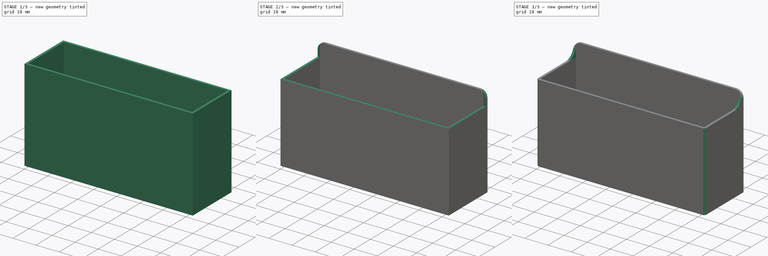
[diagram: build sequence overview — one tinted view per stage of 3, left to right]
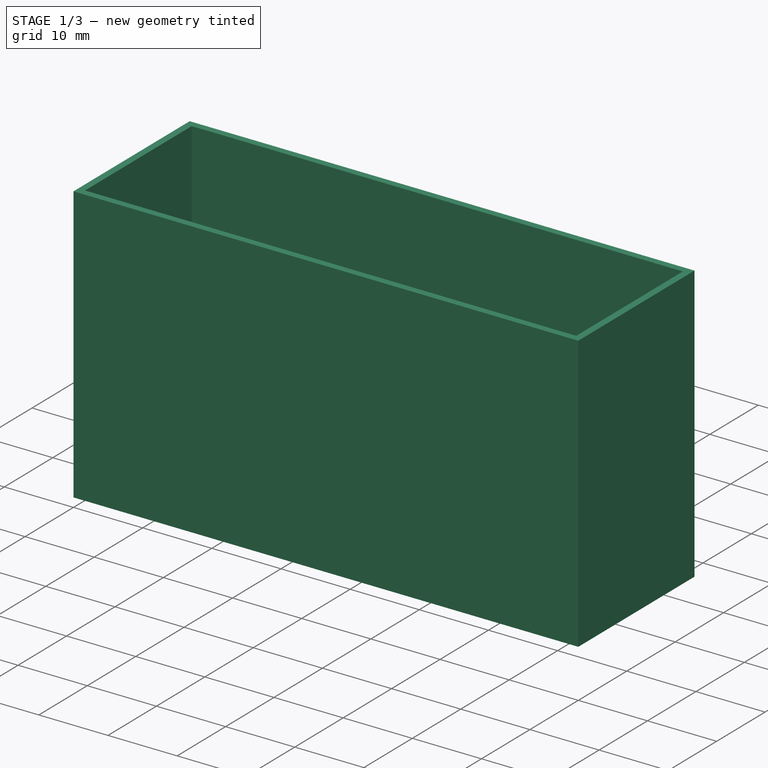
[diagram: stage 1 of 3 — iso view after this stage's code; geometry added in this stage tinted green]
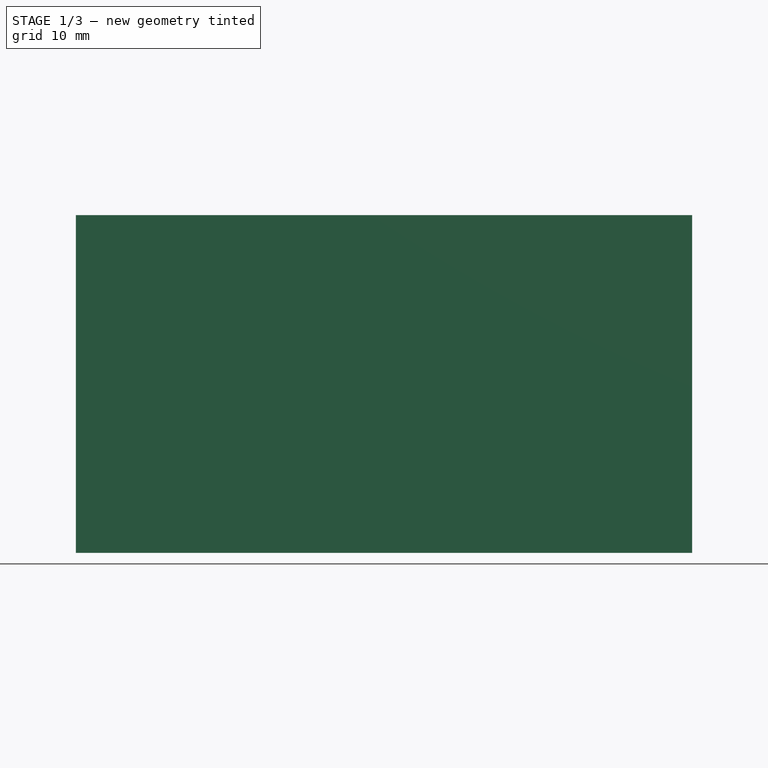
[diagram: stage 1 of 3 — front view after this stage's code; geometry added in this stage tinted green]
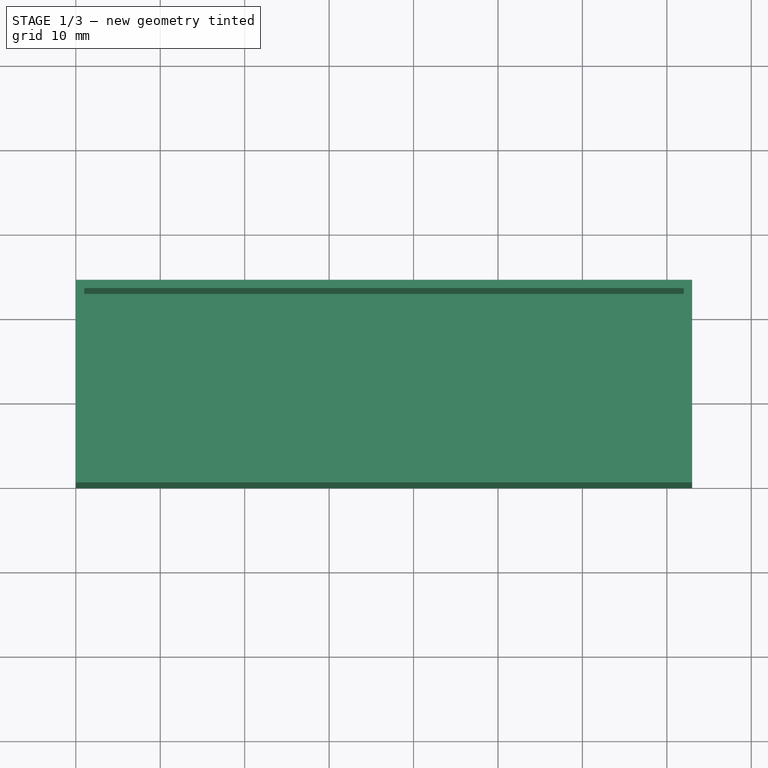
[diagram: stage 1 of 3 — top view after this stage's code; geometry added in this stage tinted green]
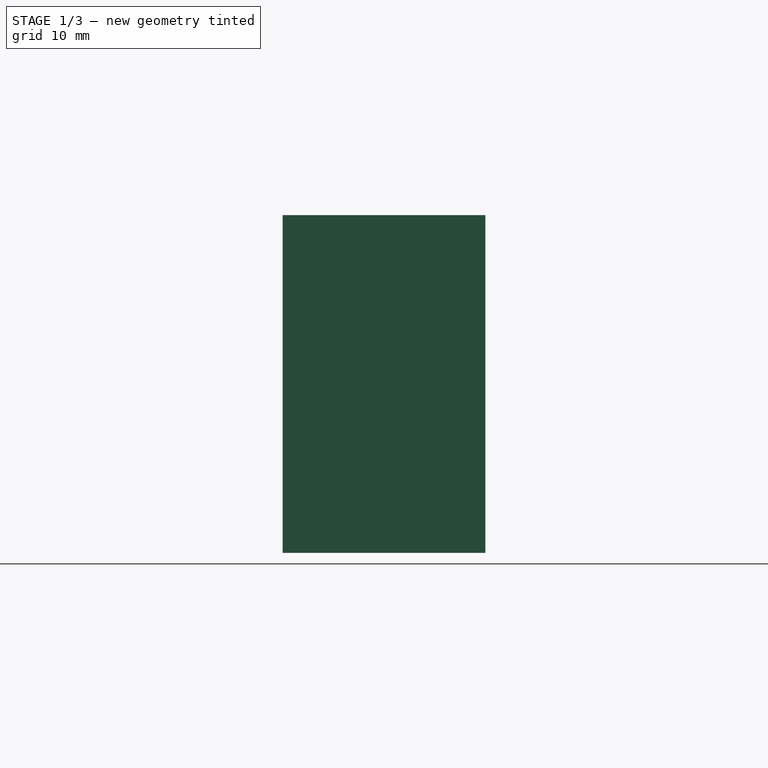
[diagram: stage 1 of 3 — right view after this stage's code; geometry added in this stage tinted green]
FCSTD DOCUMENT  (FreeCAD 0.19R)
Label: raaco_inlay_box
License: All rights reserved
LicenseURL: http://en.wikipedia.org/wiki/All_rights_reserved
objects: Sketcher::SketchObject×3, PartDesign::Pocket×2, PartDesign::Chamfer×2, PartDesign::Fillet×2, PartDesign::Pad×1, PartDesign::Body×1
note: 18 computed .brp shape members not serialized (recipe doc carries the construction recipe); baked Part::Feature solids carry a one-line shape summary decoded from their .brp

FEATURE [Sketcher::SketchObject] Sketch  label="Base"
  FullyConstrained = true
  MapMode = 5
  Support = -> [XY_Plane]
  sketch-geometry (4):
    g0: LineSegment StartX=0 StartY=24 StartZ=0 EndX=73 EndY=24 EndZ=0
    g1: LineSegment StartX=73 StartY=24 StartZ=0 EndX=73 EndY=0 EndZ=0
    g2: LineSegment StartX=73 StartY=0 StartZ=0 EndX=0 EndY=0 EndZ=0
    g3: LineSegment StartX=0 StartY=0 StartZ=0 EndX=0 EndY=24 EndZ=0
  constraints (11):
    c: Coincident(g0,g1)
    c: Coincident(g1,g2)
    c: Coincident(g2,g3)
    c: Coincident(g3,g0)
    c: Horizontal(g0)
    c: Horizontal(g2)
    c: Vertical(g1)
    c: Vertical(g3)
    c: Coincident(g2,g-1)
    c: DistanceX(g0,g0) = 73
    c: DistanceY(g1,g1) = 24
FEATURE [PartDesign::Pad] Pad  label="Korpus"
  Direction = (1,1,1)
  Length = 40
  Length2 = 100
  Profile = -> Sketch
  Type = 0
FEATURE [Sketcher::SketchObject] Sketch001  label="Cutout"
  ExternalGeometry = -> [Pad]
  FullyConstrained = true
  MapMode = 5
  Placement = pos=(0,0,40) rot=(0,0,1;0rad)
  Support = -> [Pad]
  sketch-geometry (7):
    g0: LineSegment StartX=0.989949 StartY=23.0101 StartZ=0 EndX=72.0101 EndY=23.0101 EndZ=0
    g1: LineSegment StartX=72.0101 StartY=23.0101 StartZ=0 EndX=72.0101 EndY=0.989949 EndZ=0
    g2: LineSegment StartX=72.0101 StartY=0.989949 StartZ=0 EndX=0.989949 EndY=0.989949 EndZ=0
    g3: LineSegment StartX=0.989949 StartY=0.989949 StartZ=0 EndX=0.989949 EndY=23.0101 EndZ=0
    g4: LineSegment StartX=72.0101 StartY=23.0101 StartZ=0 EndX=73 EndY=24 EndZ=0
    g5: LineSegment StartX=72.0101 StartY=0.989949 StartZ=0 EndX=73 EndY=0 EndZ=0
    g6: LineSegment StartX=0.989949 StartY=23.0101 StartZ=0 EndX=0 EndY=24 EndZ=0
  constraints (18):
    c: Coincident(g0,g1)
    c: Coincident(g1,g2)
    c: Coincident(g2,g3)
    c: Coincident(g3,g0)
    c: Horizontal(g0)
    c: Horizontal(g2)
    c: Vertical(g1)
    c: Vertical(g3)
    c: Coincident(g4,g0)
    c: Coincident(g5,g1)
    c: Coincident(g6,g0)
    c: Equal(g4,g5)
    c: Angle(g4,g-5) = 0.785398
    c: Coincident(g4,g-6)
    c: Coincident(g5,g-5)
    c: Coincident(g6,g-6)
    c: Angle(g6,g-6) = 0.785398
    c: Distance(g-1,g2) = 1.4
FEATURE [PartDesign::Pocket] Pocket
  BaseFeature = -> Pad
  Length = 39
  Length2 = 100
  Profile = -> Sketch001
  Type = 0
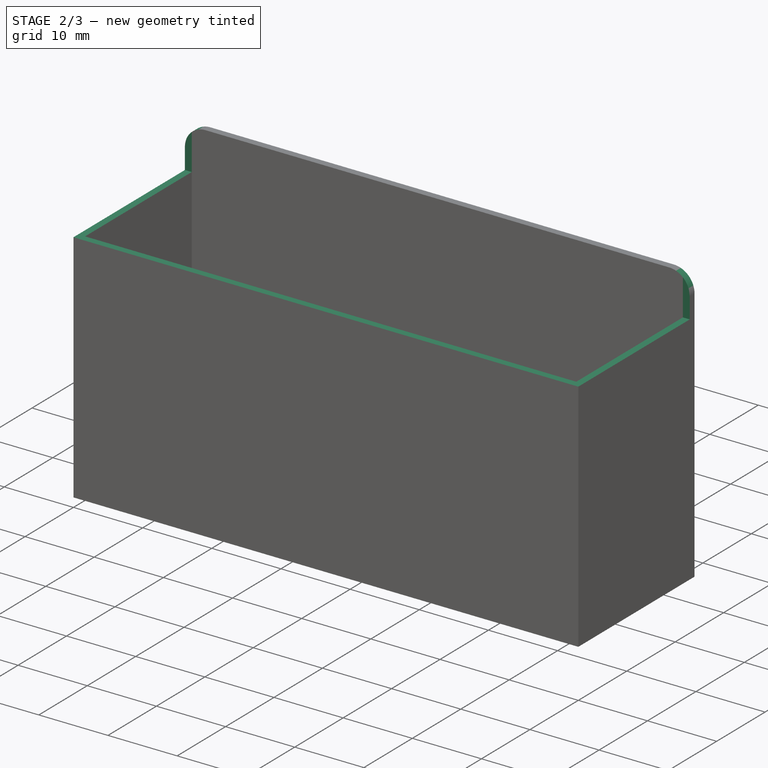
[diagram: stage 2 of 3 — iso view after this stage's code; geometry added in this stage tinted green]
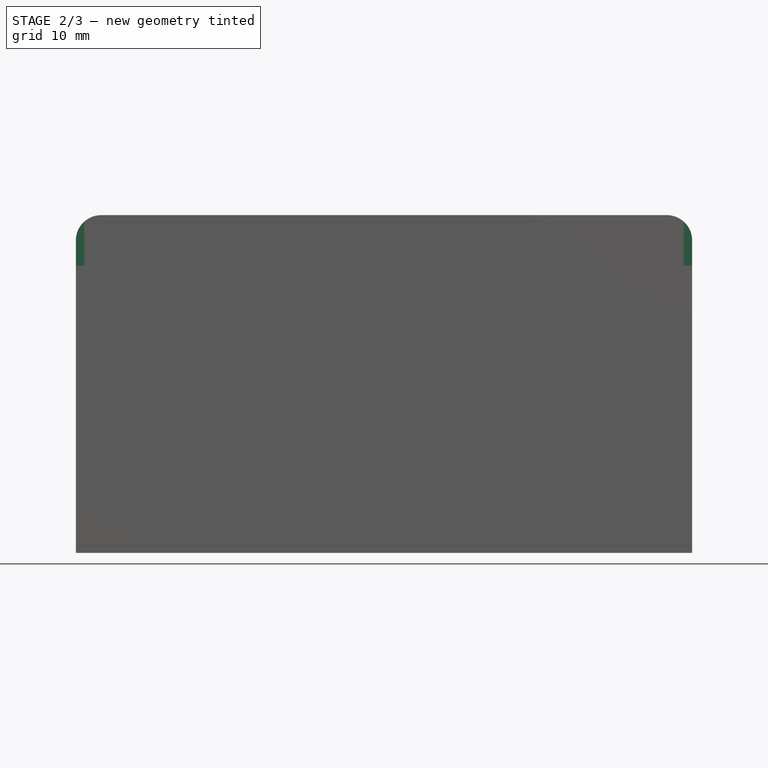
[diagram: stage 2 of 3 — front view after this stage's code; geometry added in this stage tinted green]
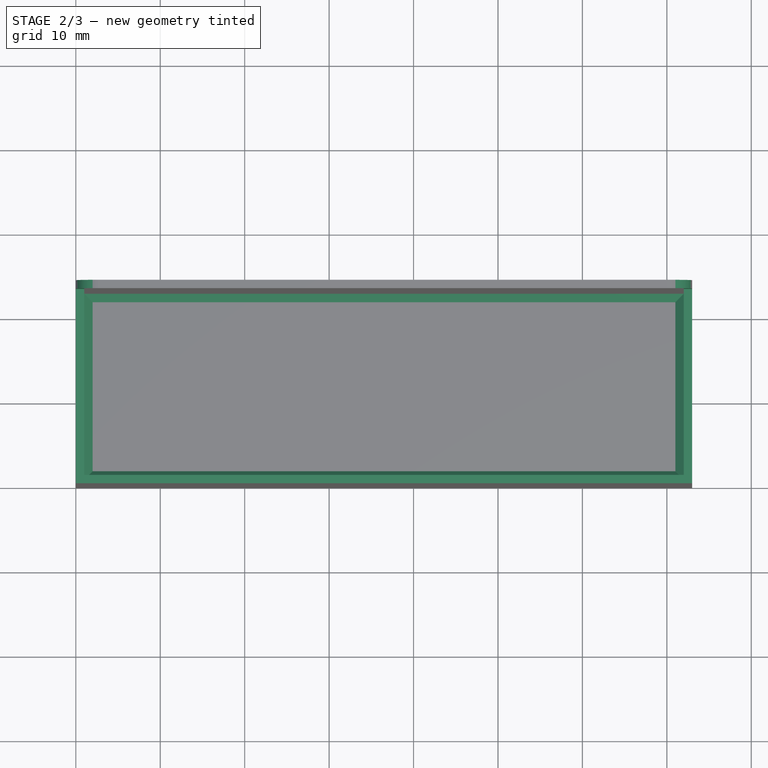
[diagram: stage 2 of 3 — top view after this stage's code; geometry added in this stage tinted green]
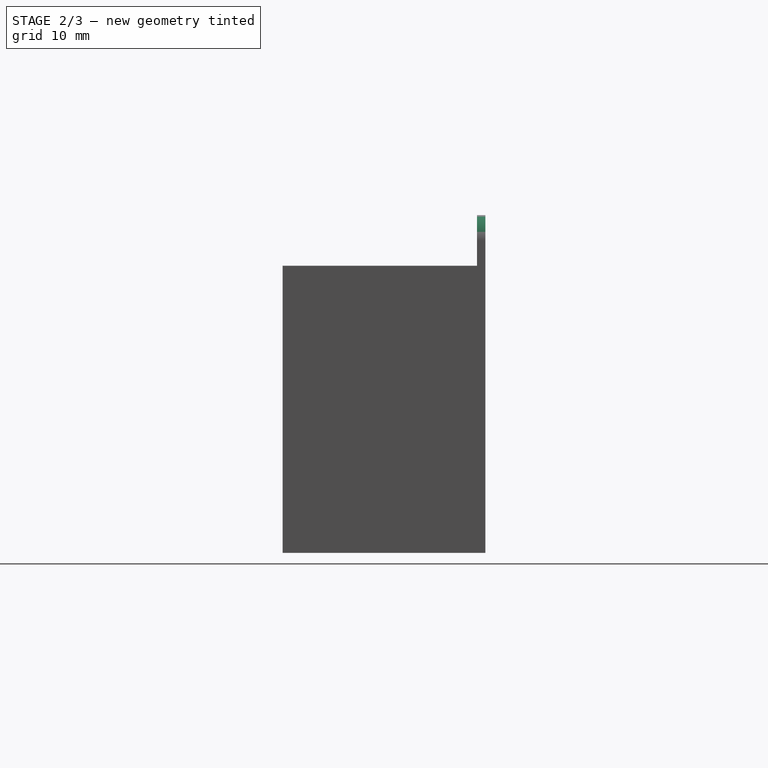
[diagram: stage 2 of 3 — right view after this stage's code; geometry added in this stage tinted green]
FEATURE [Sketcher::SketchObject] Sketch002  label="UpperFrontShape"
  ExternalGeometry = -> [Pocket]
  FullyConstrained = true
  MapMode = 5
  Placement = pos=(0,0,40) rot=(0,0,1;0rad)
  Support = -> [Pocket]
  sketch-geometry (8):
    g0: LineSegment StartX=0 StartY=23.0101 StartZ=0 EndX=0.989949 EndY=23.0101 EndZ=0
    g1: LineSegment StartX=0.989949 StartY=23.0101 StartZ=0 EndX=0.989949 EndY=0.989949 EndZ=0
    g2: LineSegment StartX=0.989949 StartY=0.989949 StartZ=0 EndX=72.0101 EndY=0.989949 EndZ=0
    g3: LineSegment StartX=72.0101 StartY=0.989949 StartZ=0 EndX=72.0101 EndY=23.0101 EndZ=0
    g4: LineSegment StartX=72.0101 StartY=23.0101 StartZ=0 EndX=73 EndY=23.0101 EndZ=0
    g5: LineSegment StartX=73 StartY=23.0101 StartZ=0 EndX=73 EndY=0 EndZ=0
    g6: LineSegment StartX=73 StartY=0 StartZ=0 EndX=0 EndY=0 EndZ=0
    g7: LineSegment StartX=0 StartY=0 StartZ=0 EndX=0 EndY=23.0101 EndZ=0
  constraints (23):
    c: Coincident(g0,g1)
    c: Coincident(g1,g2)
    c: Coincident(g2,g3)
    c: Coincident(g3,g4)
    c: Coincident(g4,g5)
    c: Coincident(g5,g6)
    c: Coincident(g6,g7)
    c: Coincident(g7,g0)
    c: Coincident(g6,g-1)
    c: PointOnObject(g1,g-8)
    c: PointOnObject(g1,g-7)
    c: PointOnObject(g0,g-3)
    c: PointOnObject(g0,g-4)
    c: PointOnObject(g0,g-7)
    c: PointOnObject(g0,g-3)
    c: PointOnObject(g4,g-6)
    c: PointOnObject(g4,g-3)
    c: PointOnObject(g3,g-9)
    c: PointOnObject(g3,g-3)
    c: PointOnObject(g5,g-6)
    c: PointOnObject(g5,g-5)
    c: PointOnObject(g2,g-8)
    c: PointOnObject(g2,g-9)
FEATURE [PartDesign::Pocket] Pocket001  label="FrontCutout"
  BaseFeature = -> Pocket
  Length = 6
  Length2 = 100
  Profile = -> Sketch002
  Type = 0
FEATURE [PartDesign::Chamfer] Chamfer
  Angle = 45
  Base = -> Pocket001 [Face14]
  BaseFeature = -> Pocket001
  ChamferType = 0
  FlipDirection = false
  Size = 1
  Size2 = 1
  SupportTransform = false
FEATURE [PartDesign::Fillet] Fillet
  Base = -> Chamfer [Edge19,Edge21]
  BaseFeature = -> Chamfer
  Radius = 3
  SupportTransform = false
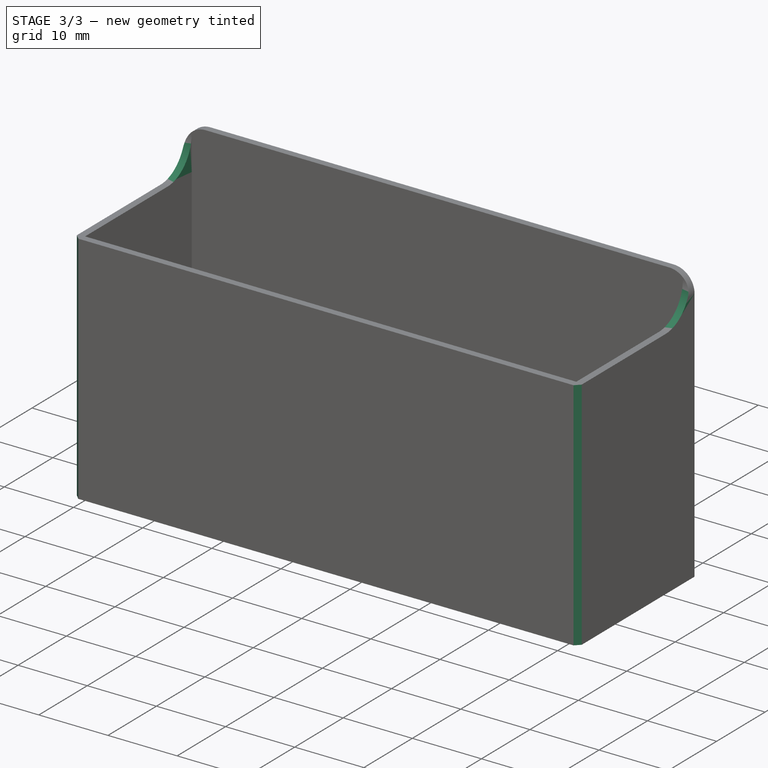
[diagram: stage 3 of 3 — iso view after this stage's code; geometry added in this stage tinted green]
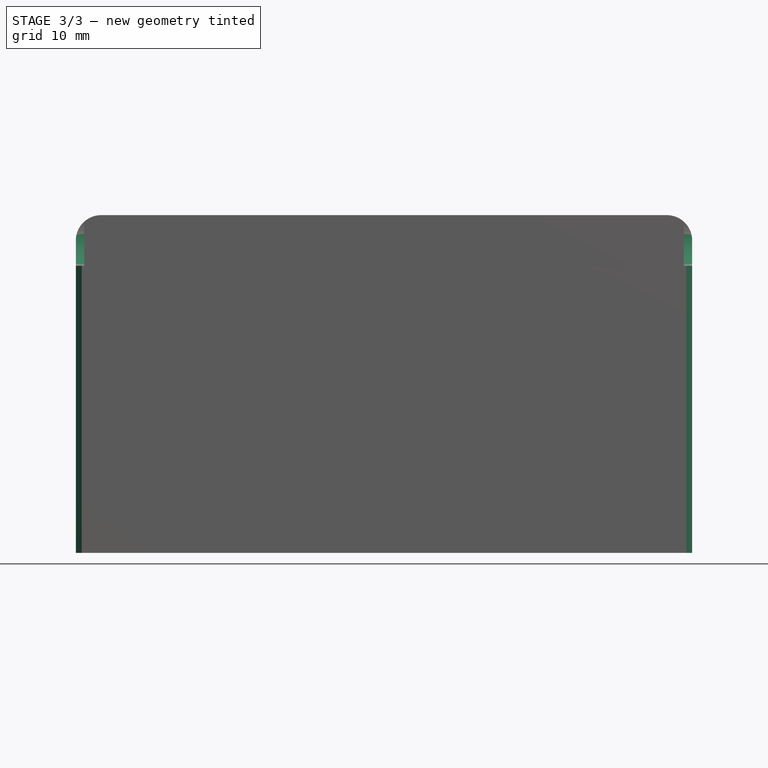
[diagram: stage 3 of 3 — front view after this stage's code; geometry added in this stage tinted green]
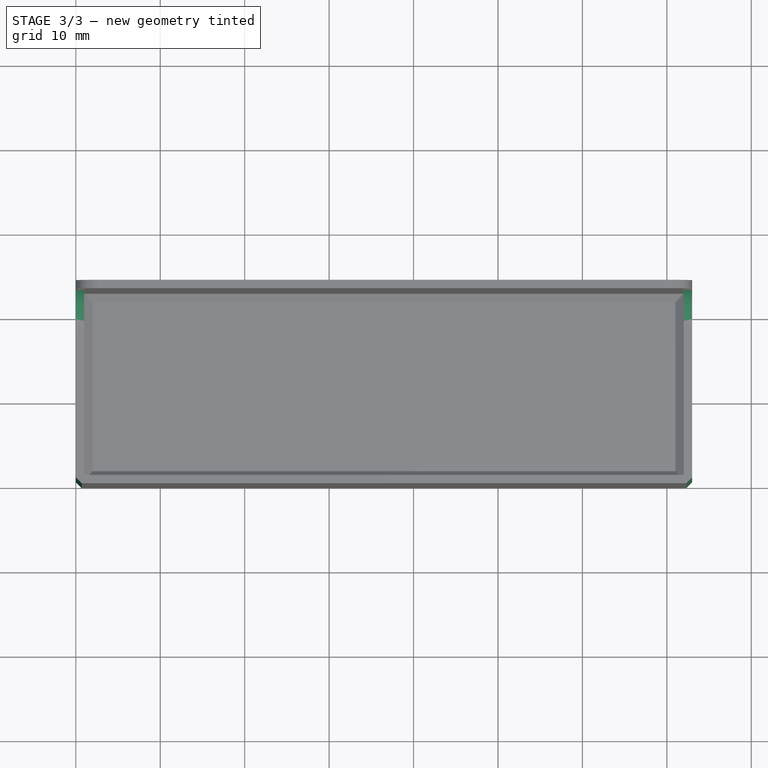
[diagram: stage 3 of 3 — top view after this stage's code; geometry added in this stage tinted green]
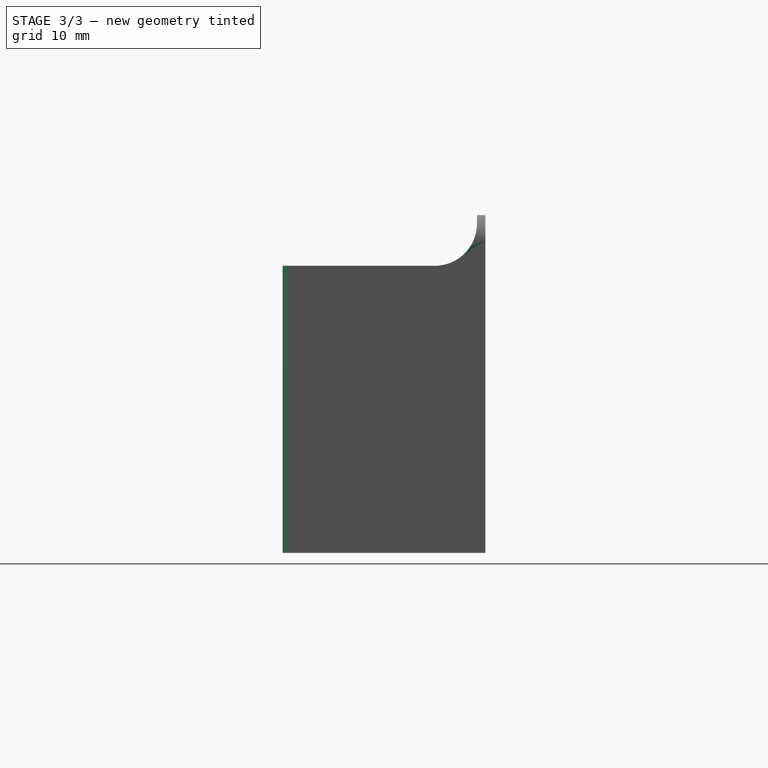
[diagram: stage 3 of 3 — right view after this stage's code; geometry added in this stage tinted green]
FEATURE [PartDesign::Fillet] Fillet001
  Base = -> Fillet [Edge11,Edge29]
  BaseFeature = -> Fillet
  Radius = 5
  SupportTransform = false
FEATURE [PartDesign::Chamfer] Chamfer001
  Angle = 45
  Base = -> Fillet001 [Edge25,Edge52]
  BaseFeature = -> Fillet001
  ChamferType = 0
  FlipDirection = false
  Size = 0.7
  Size2 = 1
  SupportTransform = false
FEATURE [PartDesign::Body] Body  label="Inlay"
  Group = -> [Sketch,Pad,Sketch001,Pocket,Sketch002,Pocket001,Chamfer,Fillet,Fillet001,Chamfer001]
  Origin = -> Origin
  Tip = -> Chamfer001
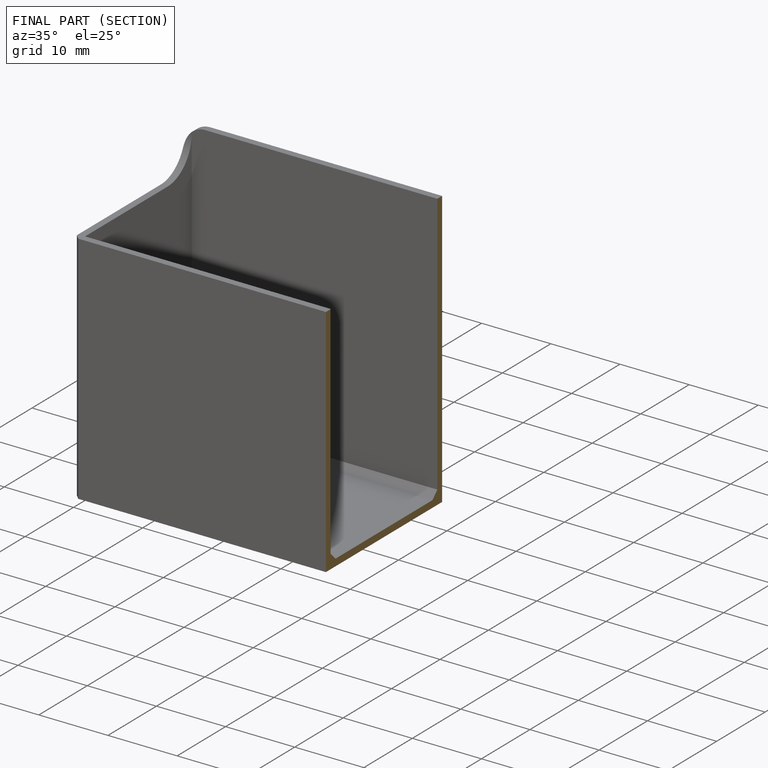
[diagram: finished part — half-section view (interior)]
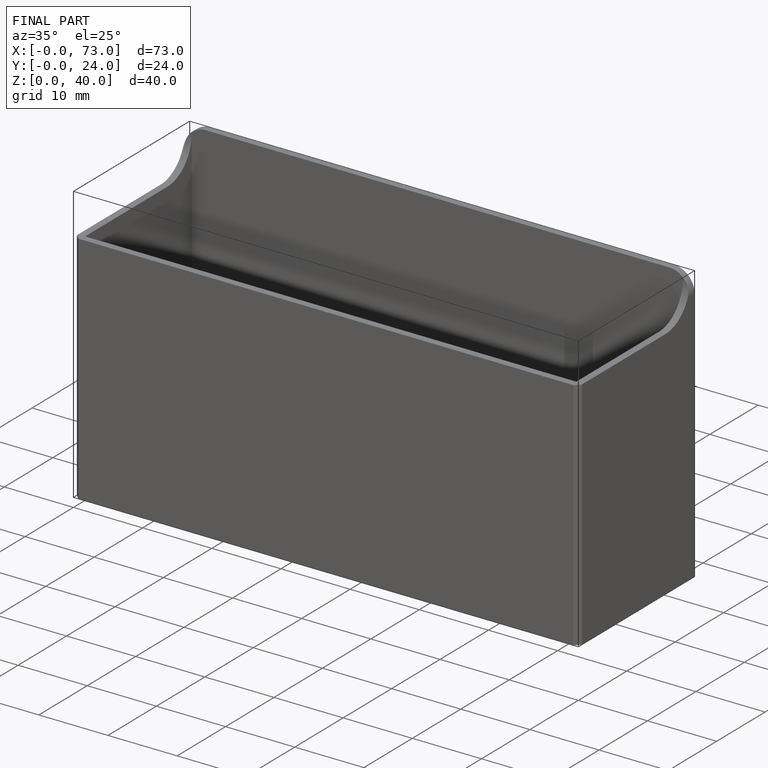
[diagram: finished part — iso view with bounding-box wireframe]
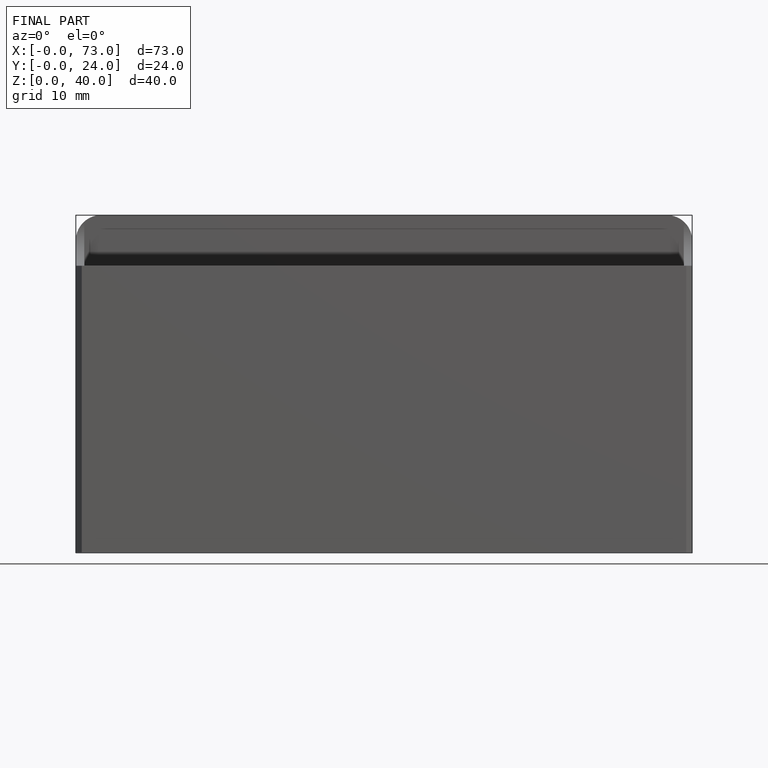
[diagram: finished part — front view with bounding-box wireframe]
